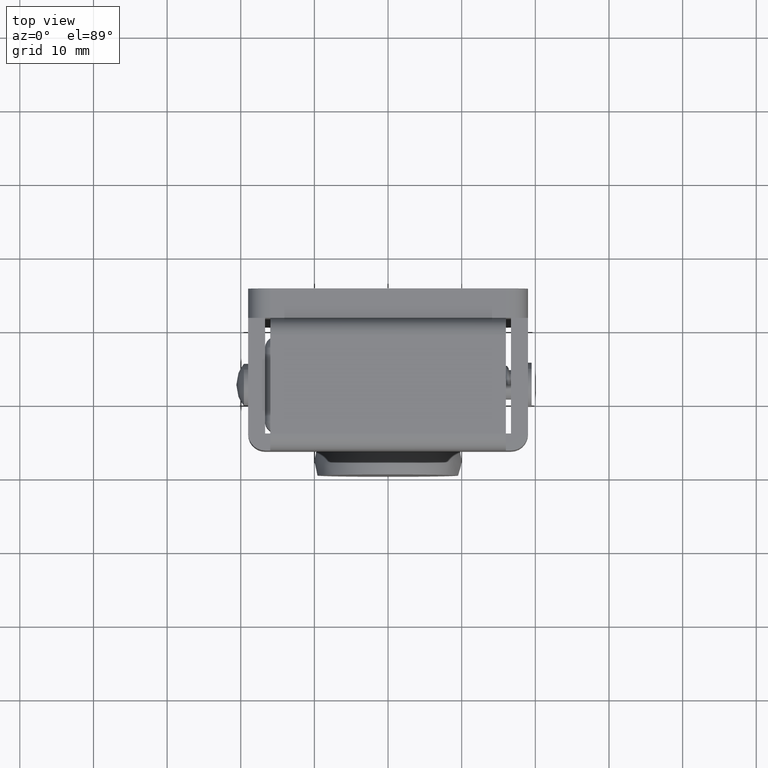
[diagram: clean part render]
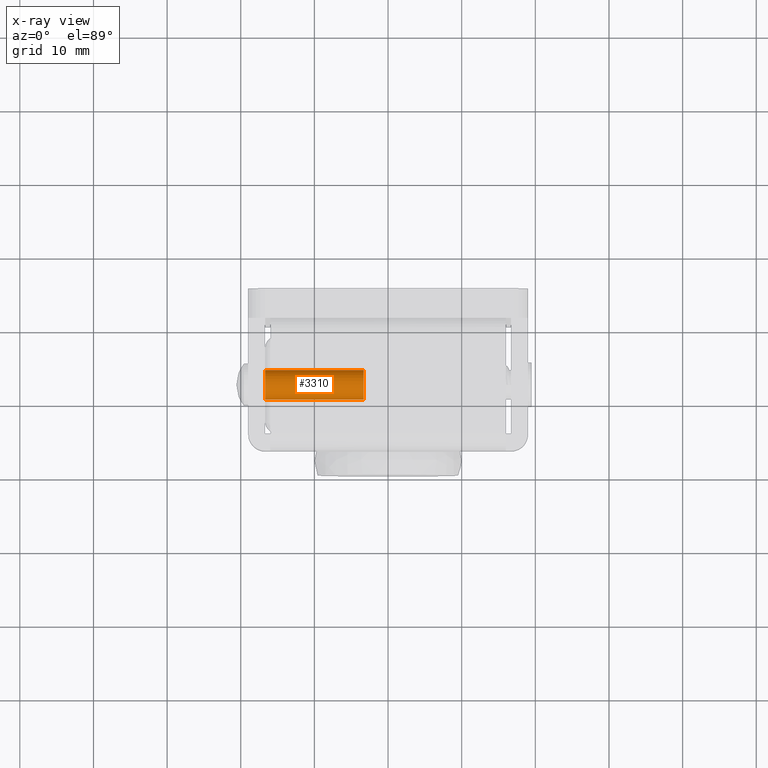
[diagram: x-ray — body ghosted, one internal face saturated and labeled with its STEP entity id]
A machine part, top view, then the same camera in x-ray: the body is ghosted and one INTERNAL B-rep face — a face not visible from any outside direction — is saturated and labeled: STEP entity #3310.
In plain terms, the highlighted face is a freeform B-spline surface patch.
Its self-contained STEP definition (entity closure, byte-faithful):
#3175=CARTESIAN_POINT('',(17.035000000000000,-12.926500898308360,45.598181471400302));
#3176=CARTESIAN_POINT('',(17.035000000000004,-14.328319426908065,47.024682369708664));
#3177=CARTESIAN_POINT('',(17.035000000000000,-12.901818528599700,48.426500898308362));
#3178=CARTESIAN_POINT('',(17.035000000000004,-11.475317630291341,49.828319426908067));
#3179=CARTESIAN_POINT('',(17.035000000000000,-10.073499101691640,48.401818528599712));
#3180=CARTESIAN_POINT('',(17.035000000000004,-8.671680573091937,46.975317630291336));
#3181=CARTESIAN_POINT('',(17.035000000000000,-10.098181471400300,45.573499101691638));
#3182=CARTESIAN_POINT('',(2.956625000000091,-12.926500898308360,45.598181471400302));
#3183=CARTESIAN_POINT('',(2.956625000000091,-14.328319426908065,47.024682369708664));
#3184=CARTESIAN_POINT('',(2.956625000000091,-12.901818528599700,48.426500898308362));
#3185=CARTESIAN_POINT('',(2.956625000000091,-11.475317630291341,49.828319426908067));
#3186=CARTESIAN_POINT('',(2.956625000000091,-10.073499101691640,48.401818528599712));
#3187=CARTESIAN_POINT('',(2.956625000000091,-8.671680573091937,46.975317630291336));
#3188=CARTESIAN_POINT('',(2.956625000000091,-10.098181471400300,45.573499101691638));
#3196=(BOUNDED_SURFACE()B_SPLINE_SURFACE(2,1,((#3175,#3182),(#3176,#3183),(#3177,#3184),(#3178,#3185),(#3179,#3186),(#3180,#3187),(#3181,#3188)),.UNSPECIFIED.,.F.,.F.,.U.)B_SPLINE_SURFACE_WITH_KNOTS((3,2,2,3),(2,2),(0.0,3.313708498984763,6.627416997969525,9.941125496954287),(0.0,14.078374999999911),.UNSPECIFIED.)GEOMETRIC_REPRESENTATION_ITEM()RATIONAL_B_SPLINE_SURFACE(((1.0,1.0),(0.707106781186548,0.707106781186548),(1.0,1.0),(0.707106781186548,0.707106781186548),(1.0,1.0),(0.707106781186548,0.707106781186548),(1.0,1.0)))REPRESENTATION_ITEM('')SURFACE());
#3197=CARTESIAN_POINT('',(3.300000000000090,-13.499999999999410,46.999998459448577));
#3198=VERTEX_POINT('',#3197);
#3199=CARTESIAN_POINT('',(3.300000000001338,-12.926501263115870,45.598181293231747));
#3200=VERTEX_POINT('',#3199);
#3201=CARTESIAN_POINT('',(3.300000000000090,-13.499999999999410,46.999998459448577));
#3202=CARTESIAN_POINT('',(3.300000000000332,-13.500360766604460,46.724870345931187));
#3203=CARTESIAN_POINT('',(3.300000000000800,-13.391320385293101,46.207429277315399));
#3204=CARTESIAN_POINT('',(3.300000000001182,-13.096789391572649,45.771171080895847));
#3205=CARTESIAN_POINT('',(3.300000000001338,-12.926501263115870,45.598181293231747));
#3206=B_SPLINE_CURVE_WITH_KNOTS('',3,(#3201,#3202,#3203,#3204,#3205),.UNSPECIFIED.,.F.,.U.,(4,1,4),(0.000000033100711,0.825225761766383,1.553379632534792),.UNSPECIFIED.);
#3207=EDGE_CURVE('',#3198,#3200,#3206,.T.);
#3208=ORIENTED_EDGE('',*,*,#3207,.F.);
#3209=CARTESIAN_POINT('',(3.300000000000090,-11.500000000000000,49.0));
#3210=VERTEX_POINT('',#3209);
#3211=CARTESIAN_POINT('',(3.300000000000090,-11.500000000000000,49.0));
#3212=CARTESIAN_POINT('',(3.300000000000089,-11.679992188957300,49.000070436641472));
#3213=CARTESIAN_POINT('',(3.300000000000093,-11.958115109466020,48.962175285725522));
#3214=CARTESIAN_POINT('',(3.300000000000086,-12.344295114815999,48.823974565447998));
#3215=CARTESIAN_POINT('',(3.300000000000102,-12.744981927981989,48.597191478615052));
#3216=CARTESIAN_POINT('',(3.300000000000078,-13.073704296568531,48.268458072956307));
#3217=CARTESIAN_POINT('',(3.300000000000106,-13.309784108034110,47.874320121000920));
#3218=CARTESIAN_POINT('',(3.300000000000086,-13.457735724825961,47.490841055255977));
#3219=CARTESIAN_POINT('',(3.300000000000077,-13.500065780711861,47.179988657161068));
#3220=CARTESIAN_POINT('',(3.300000000000090,-13.499999999999410,46.999998459448577));
#3221=B_SPLINE_CURVE_WITH_KNOTS('',3,(#3211,#3212,#3213,#3214,#3215,#3216,#3217,#3218,#3219,#3220),.UNSPECIFIED.,.F.,.U.,(4,1,1,1,1,1,1,4),(0.000000138696179,0.539963453702770,0.834509548268068,1.227218650564975,1.914453842991615,2.208988281680794,2.601709042711416,3.141672356977701),.UNSPECIFIED.);
#3222=EDGE_CURVE('',#3210,#3198,#3221,.T.);
#3223=ORIENTED_EDGE('',*,*,#3222,.F.);
#3224=CARTESIAN_POINT('',(3.300000000000090,-9.500000000000593,47.000001540551409));
#3225=VERTEX_POINT('',#3224);
#3226=CARTESIAN_POINT('',(3.300000000000090,-9.500000000000593,47.000001540551409));
#3227=CARTESIAN_POINT('',(3.300000000000092,-9.499789595656276,47.245459437220283));
#3228=CARTESIAN_POINT('',(3.300000000000089,-9.582369624638854,47.687122472168099));
#3229=CARTESIAN_POINT('',(3.300000000000086,-9.867741881150911,48.190792799763628));
#3230=CARTESIAN_POINT('',(3.300000000000112,-10.185231048159601,48.524176683547978));
#3231=CARTESIAN_POINT('',(3.300000000000074,-10.480957628425029,48.732436853497440));
#3232=CARTESIAN_POINT('',(3.300000000000105,-10.911073428168320,48.935932107075331));
#3233=CARTESIAN_POINT('',(3.300000000000094,-11.254521446383849,49.000230244617534));
#3234=CARTESIAN_POINT('',(3.300000000000090,-11.500000000000000,49.0));
#3235=B_SPLINE_CURVE_WITH_KNOTS('',3,(#3226,#3227,#3228,#3229,#3230,#3231,#3232,#3233,#3234),.UNSPECIFIED.,.F.,.U.,(4,1,1,1,1,1,4),(0.000000140802692,0.736326432822191,1.325415308760892,1.718068493421246,2.110798395744655,2.405344327903137,3.141670620373922),.UNSPECIFIED.);
#3236=EDGE_CURVE('',#3225,#3210,#3235,.T.);
#3237=ORIENTED_EDGE('',*,*,#3236,.F.);
#3238=CARTESIAN_POINT('',(3.299999999998828,-10.098181837831561,45.573499281494122));
#3239=VERTEX_POINT('',#3238);
#3240=CARTESIAN_POINT('',(3.299999999998828,-10.098181837831561,45.573499281494122));
#3241=CARTESIAN_POINT('',(3.299999999999005,-9.897255238438202,45.770395445677003));
#3242=CARTESIAN_POINT('',(3.299999999999402,-9.599895421478351,46.222585471441192));
#3243=CARTESIAN_POINT('',(3.299999999999868,-9.499771248423897,46.751801673219703));
#3244=CARTESIAN_POINT('',(3.300000000000090,-9.500000000000593,47.000001540551409));
#3245=B_SPLINE_CURVE_WITH_KNOTS('',3,(#3240,#3241,#3242,#3243,#3244),.UNSPECIFIED.,.F.,.U.,(4,1,4),(0.000000036948457,0.843772416484421,1.588291887935192),.UNSPECIFIED.);
#3246=EDGE_CURVE('',#3239,#3225,#3245,.T.);
#3247=ORIENTED_EDGE('',*,*,#3246,.F.);
#3248=CARTESIAN_POINT('',(16.699999999999999,-10.098181292070240,45.573498738025528));
#3249=VERTEX_POINT('',#3248);
#3250=CARTESIAN_POINT('',(16.699999999999999,-10.098181292070240,45.573498738025528));
#3251=CARTESIAN_POINT('',(3.299999999998828,-10.098181837831561,45.573499281494122));
#3252=QUASI_UNIFORM_CURVE('',1,(#3250,#3251),.UNSPECIFIED.,.F.,.U.);
#3253=EDGE_CURVE('',#3249,#3239,#3252,.T.);
#3254=ORIENTED_EDGE('',*,*,#3253,.F.);
#3255=CARTESIAN_POINT('',(16.699999999999999,-9.500000000000593,46.999998459448577));
#3256=VERTEX_POINT('',#3255);
#3257=CARTESIAN_POINT('',(16.699999999999999,-9.500000000000593,46.999998459448577));
#3258=CARTESIAN_POINT('',(16.699999999999971,-9.499604690437707,46.718682148100250));
#3259=CARTESIAN_POINT('',(16.700000000000070,-9.613708900338411,46.189645317049852));
#3260=CARTESIAN_POINT('',(16.699999999999939,-9.920991718675095,45.747301987014602));
#3261=CARTESIAN_POINT('',(16.699999999999999,-10.098181292070240,45.573498738025528));
#3262=B_SPLINE_CURVE_WITH_KNOTS('',3,(#3257,#3258,#3259,#3260,#3261),.UNSPECIFIED.,.F.,.U.,(4,1,4),(0.000000036947846,0.843770937593095,1.588289104061069),.UNSPECIFIED.);
#3263=EDGE_CURVE('',#3256,#3249,#3262,.T.);
#3264=ORIENTED_EDGE('',*,*,#3263,.F.);
#3265=CARTESIAN_POINT('',(16.699999999999999,-11.500000000000000,49.0));
#3266=VERTEX_POINT('',#3265);
#3267=CARTESIAN_POINT('',(16.699999999999999,-11.500000000000000,49.0));
#3268=CARTESIAN_POINT('',(16.700000000000010,-11.320012882385040,49.000051624935899));
#3269=CARTESIAN_POINT('',(16.699999999999982,-10.976438149380961,48.953290246100522));
#3270=CARTESIAN_POINT('',(16.700000000000010,-10.443263044889299,48.732598757110402));
#3271=CARTESIAN_POINT('',(16.699999999999999,-10.032536687375471,48.395532019108458));
#3272=CARTESIAN_POINT('',(16.699999999999989,-9.767577362687437,48.019026162874852));
#3273=CARTESIAN_POINT('',(16.700000000000092,-9.564067087162499,47.588925209729730));
#3274=CARTESIAN_POINT('',(16.699999999999939,-9.499770107615712,47.245477193018992));
#3275=CARTESIAN_POINT('',(16.699999999999999,-9.500000000000593,46.999998459448577));
#3276=B_SPLINE_CURVE_WITH_KNOTS('',3,(#3267,#3268,#3269,#3270,#3271,#3272,#3273,#3274,#3275),.UNSPECIFIED.,.F.,.U.,(4,1,1,1,1,1,4),(0.000000138698157,0.539963453704105,1.030872932831127,1.718069443043154,2.110799563756848,2.405345658082852,3.141672356977695),.UNSPECIFIED.);
#3277=EDGE_CURVE('',#3266,#3256,#3276,.T.);
#3278=ORIENTED_EDGE('',*,*,#3277,.F.);
#3279=CARTESIAN_POINT('',(16.699999999999999,-13.499999999999410,47.000001540551423));
#3280=VERTEX_POINT('',#3279);
#3281=CARTESIAN_POINT('',(16.699999999999999,-13.499999999999410,47.000001540551423));
#3282=CARTESIAN_POINT('',(16.699999999999982,-13.500019787498070,47.147257042326643));
#3283=CARTESIAN_POINT('',(16.700000000000010,-13.465515512793271,47.458130594179920));
#3284=CARTESIAN_POINT('',(16.700000000000038,-13.282370353156900,47.970452193367827));
#3285=CARTESIAN_POINT('',(16.699999999999921,-12.965852984211701,48.397213439672633));
#3286=CARTESIAN_POINT('',(16.700000000000099,-12.576885859193871,48.700580231883940));
#3287=CARTESIAN_POINT('',(16.699999999999900,-12.121643699429560,48.929803325275081));
#3288=CARTESIAN_POINT('',(16.700000000000010,-11.745475400048621,49.000232571781879));
#3289=CARTESIAN_POINT('',(16.699999999999999,-11.500000000000000,49.0));
#3290=B_SPLINE_CURVE_WITH_KNOTS('',3,(#3281,#3282,#3283,#3284,#3285,#3286,#3287,#3288,#3289),.UNSPECIFIED.,.F.,.U.,(4,1,1,1,1,1,4),(0.000000140809245,0.441780368513155,0.932683700189771,1.619905803697278,2.012615607906644,2.405344327904538,3.141670620373828),.UNSPECIFIED.);
#3291=EDGE_CURVE('',#3280,#3266,#3290,.T.);
#3292=ORIENTED_EDGE('',*,*,#3291,.F.);
#3293=CARTESIAN_POINT('',(16.699999999999999,-12.926500717375390,45.598181836681192));
#3294=VERTEX_POINT('',#3293);
#3295=CARTESIAN_POINT('',(16.699999999999999,-12.926500717375390,45.598181836681192));
#3296=CARTESIAN_POINT('',(16.699999999999982,-13.096781148686251,45.771174640098067));
#3297=CARTESIAN_POINT('',(16.700000000000049,-13.391360567732351,46.207418420918899));
#3298=CARTESIAN_POINT('',(16.699999999999989,-13.500325676501880,46.724880839037993));
#3299=CARTESIAN_POINT('',(16.699999999999999,-13.499999999999410,47.000001540551423));
#3300=B_SPLINE_CURVE_WITH_KNOTS('',3,(#3295,#3296,#3297,#3298,#3299),.UNSPECIFIED.,.F.,.U.,(4,1,4),(0.000000033103076,0.728155205713499,1.553382409675637),.UNSPECIFIED.);
#3301=EDGE_CURVE('',#3294,#3280,#3300,.T.);
#3302=ORIENTED_EDGE('',*,*,#3301,.F.);
#3303=CARTESIAN_POINT('',(16.699999999999999,-12.926500717375390,45.598181836681192));
#3304=CARTESIAN_POINT('',(3.300000000001338,-12.926501263115870,45.598181293231747));
#3305=QUASI_UNIFORM_CURVE('',1,(#3303,#3304),.UNSPECIFIED.,.F.,.U.);
#3306=EDGE_CURVE('',#3294,#3200,#3305,.T.);
#3307=ORIENTED_EDGE('',*,*,#3306,.T.);
#3308=EDGE_LOOP('',(#3208,#3223,#3237,#3247,#3254,#3264,#3278,#3292,#3302,#3307));
#3309=FACE_OUTER_BOUND('',#3308,.T.);
#3310=ADVANCED_FACE('',(#3309),#3196,.F.);